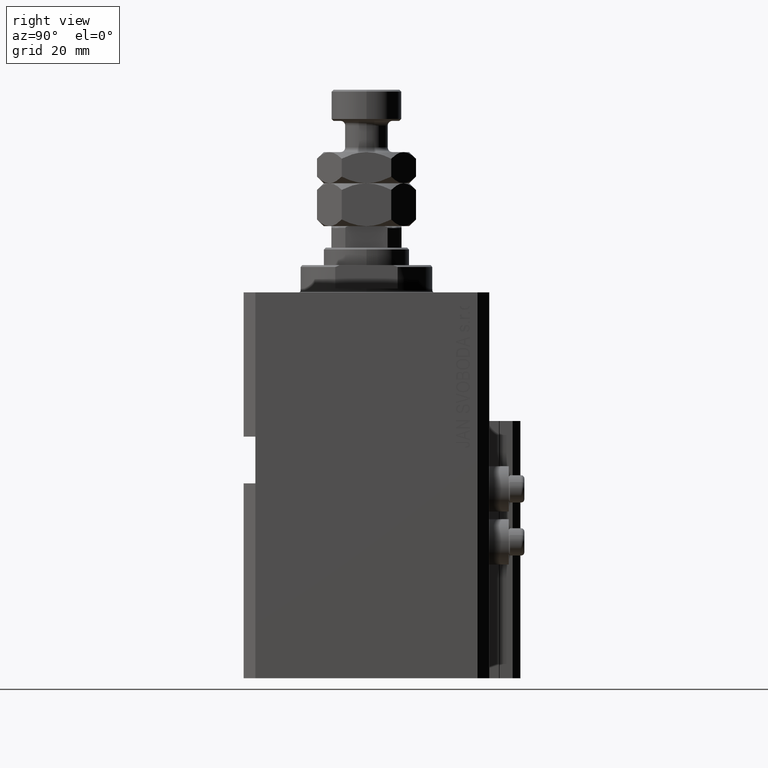
[diagram: clean part render]
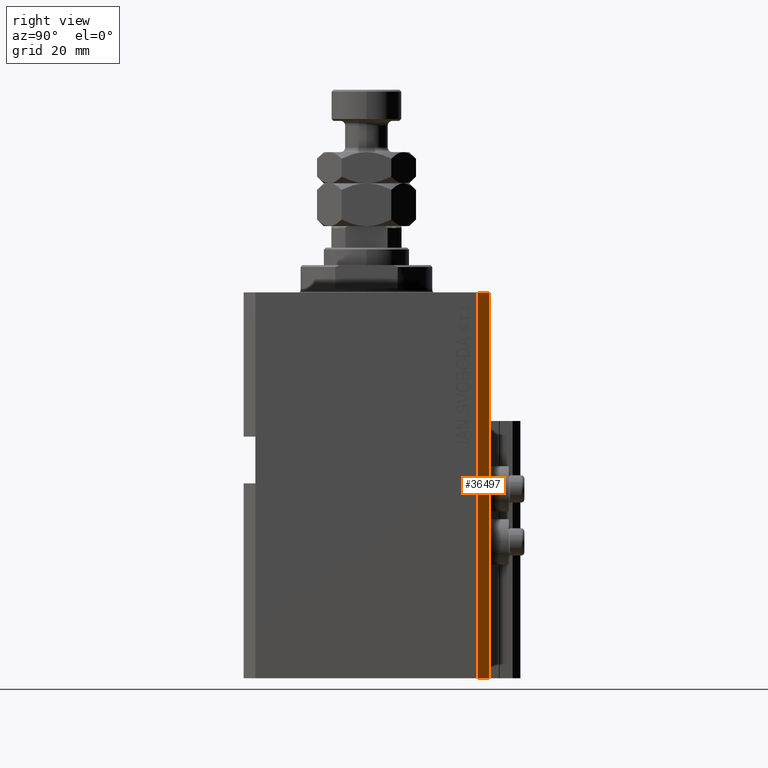
[diagram: same view with one face highlighted and labeled with its STEP entity id]
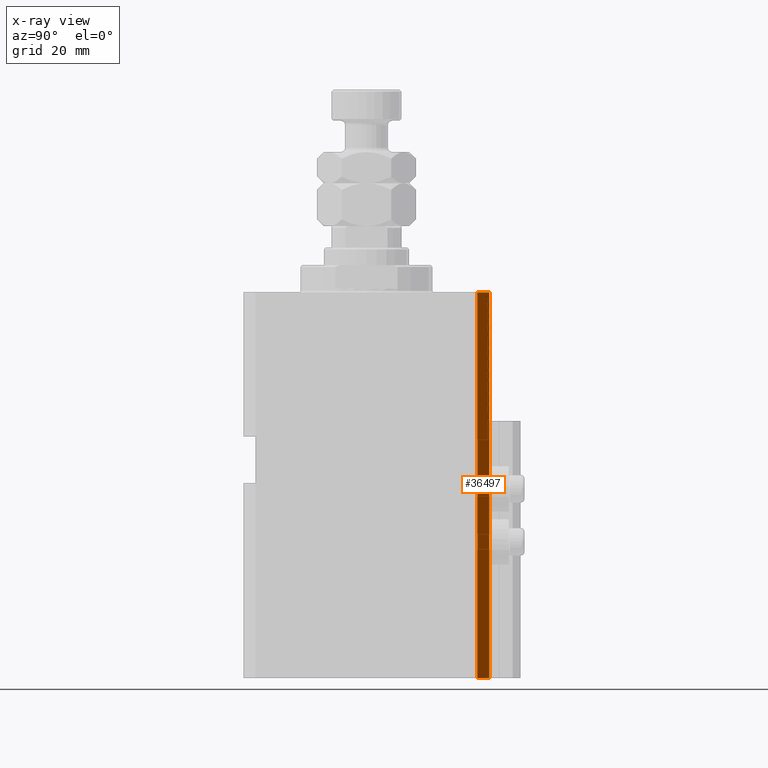
[diagram: x-ray of the same camera — body ghosted, the highlighted face saturated]
A machine part, right view. The second image highlights one B-rep face of the part: STEP entity #36497.
The next image is the same camera in x-ray: the body ghosted, the highlighted face saturated — about 0% of this face is hidden behind the body in this view.
In plain terms, the highlighted planar face has unit normal (0.7071, 0.7071, 0).
Its self-contained STEP definition (entity closure, byte-faithful):
#383 = VERTEX_POINT ( 'NONE', #1912 ) ;
#1912 = CARTESIAN_POINT ( 'NONE',  ( 42.50000000000051870, 28.49999999999995381, 0.000000000000000000 ) ) ;
#4528 = ORIENTED_EDGE ( 'NONE', *, *, #32240, .F. ) ;
#7128 = VERTEX_POINT ( 'NONE', #45961 ) ;
#7178 = AXIS2_PLACEMENT_3D ( 'NONE', #39884, #17232, #36133 ) ;
#9633 = VERTEX_POINT ( 'NONE', #40822 ) ;
#13663 = DIRECTION ( 'NONE',  ( 0.000000000000000000, 0.000000000000000000, 1.000000000000000000 ) ) ;
#13951 = LINE ( 'NONE', #36832, #27873 ) ;
#14664 = CARTESIAN_POINT ( 'NONE',  ( 39.50000000000056843, 31.50000000000000000, -99.00000000000000000 ) ) ;
#17232 = DIRECTION ( 'NONE',  ( 0.7071067811865594521, 0.7071067811865356934, -0.000000000000000000 ) ) ;
#18179 = DIRECTION ( 'NONE',  ( 0.000000000000000000, 0.000000000000000000, 1.000000000000000000 ) ) ;
#20533 = VECTOR ( 'NONE', #13663, 1000.000000000000000 ) ;
#21910 = CARTESIAN_POINT ( 'NONE',  ( 42.50000000000051870, 28.49999999999995381, -99.00000000000000000 ) ) ;
#22196 = CARTESIAN_POINT ( 'NONE',  ( 42.50000000000051870, 28.49999999999995381, -99.00000000000000000 ) ) ;
#23254 = EDGE_CURVE ( 'NONE', #9633, #28173, #33306, .T. ) ;
#23963 = PLANE ( 'NONE',  #7178 ) ;
#25152 = LINE ( 'NONE', #21910, #35015 ) ;
#25195 = CARTESIAN_POINT ( 'NONE',  ( 39.50000000000056843, 31.50000000000000000, 0.000000000000000000 ) ) ;
#27355 = VECTOR ( 'NONE', #44858, 1000.000000000000114 ) ;
#27693 = FACE_OUTER_BOUND ( 'NONE', #30450, .T. ) ;
#27873 = VECTOR ( 'NONE', #37587, 1000.000000000000114 ) ;
#28173 = VERTEX_POINT ( 'NONE', #25195 ) ;
#28952 = ORIENTED_EDGE ( 'NONE', *, *, #32175, .F. ) ;
#30450 = EDGE_LOOP ( 'NONE', ( #28952, #4528, #37548, #46963 ) ) ;
#32175 = EDGE_CURVE ( 'NONE', #383, #28173, #13951, .T. ) ;
#32240 = EDGE_CURVE ( 'NONE', #7128, #383, #25152, .T. ) ;
#33306 = LINE ( 'NONE', #14664, #20533 ) ;
#34118 = LINE ( 'NONE', #22196, #27355 ) ;
#35015 = VECTOR ( 'NONE', #18179, 1000.000000000000000 ) ;
#36133 = DIRECTION ( 'NONE',  ( -0.7071067811865356934, 0.7071067811865594521, 0.000000000000000000 ) ) ;
#36497 = ADVANCED_FACE ( 'NONE', ( #27693 ), #23963, .T. ) ;
#36832 = CARTESIAN_POINT ( 'NONE',  ( 42.50000000000051870, 28.49999999999995381, 0.000000000000000000 ) ) ;
#37548 = ORIENTED_EDGE ( 'NONE', *, *, #48557, .T. ) ;
#37587 = DIRECTION ( 'NONE',  ( -0.7071067811865356934, 0.7071067811865594521, 0.000000000000000000 ) ) ;
#39884 = CARTESIAN_POINT ( 'NONE',  ( 42.50000000000051870, 28.49999999999995381, -99.00000000000000000 ) ) ;
#40822 = CARTESIAN_POINT ( 'NONE',  ( 39.50000000000056843, 31.50000000000000000, -99.00000000000000000 ) ) ;
#44858 = DIRECTION ( 'NONE',  ( -0.7071067811865356934, 0.7071067811865594521, 0.000000000000000000 ) ) ;
#45961 = CARTESIAN_POINT ( 'NONE',  ( 42.50000000000051870, 28.49999999999995381, -99.00000000000000000 ) ) ;
#46963 = ORIENTED_EDGE ( 'NONE', *, *, #23254, .T. ) ;
#48557 = EDGE_CURVE ( 'NONE', #7128, #9633, #34118, .T. ) ;